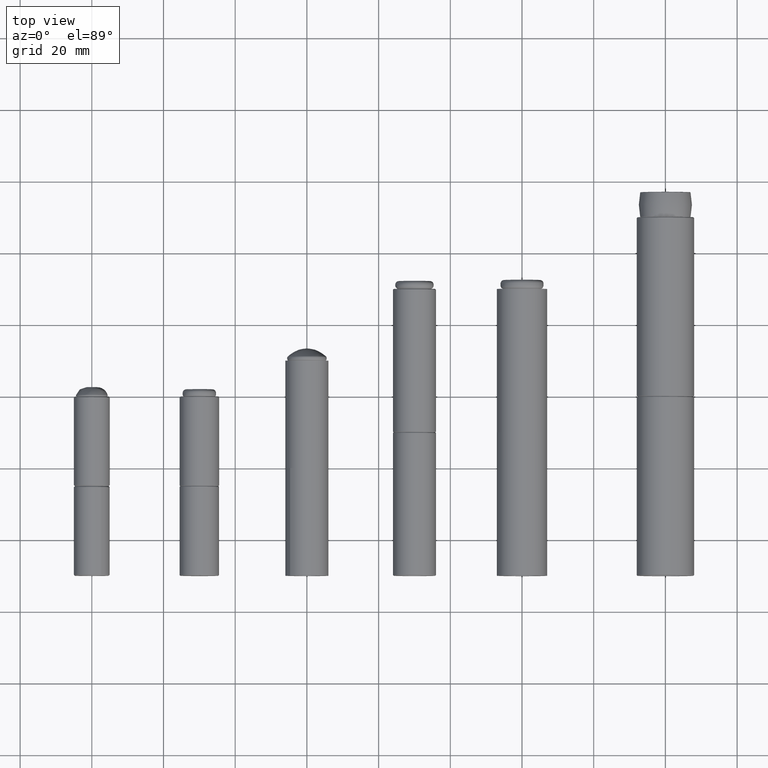
[diagram: clean part render]
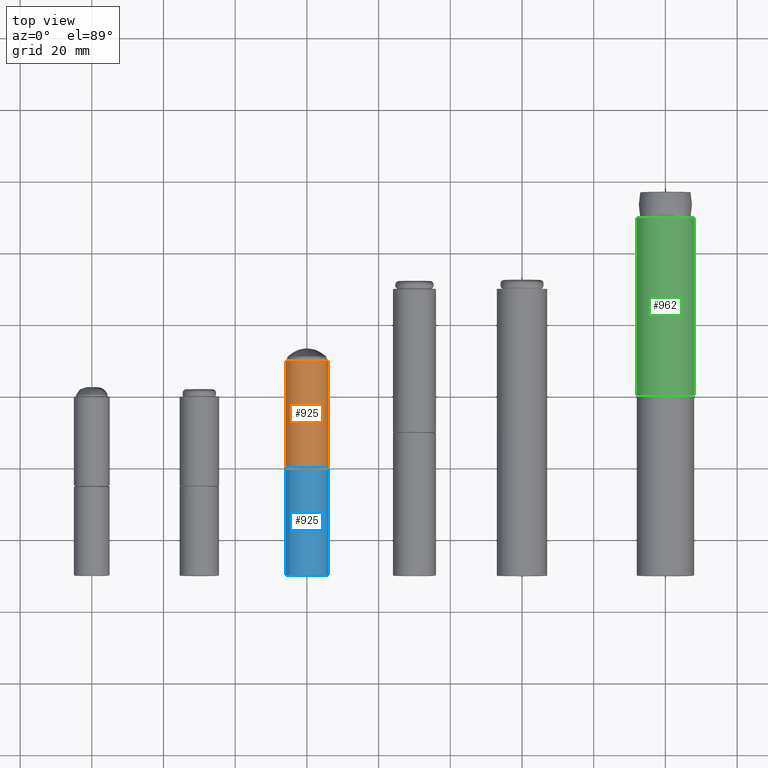
[diagram: same view with three faces highlighted in distinct colors, each labeled with its STEP entity id]
A machine part, top view with three faces highlighted in distinct colors.
Their STEP definitions:

[orange] entity #925 — the highlighted cylindrical surface (bore or boss wall) has radius 6 mm, axis along (-0, 1, -0).
#240=FACE_BOUND('',#416,.T.);
#310=FACE_OUTER_BOUND('',#415,.T.);
#415=EDGE_LOOP('',(#784));
#416=EDGE_LOOP('',(#785));
#526=CIRCLE('',#1062,6.);
#527=CIRCLE('',#1063,6.);
#600=VERTEX_POINT('',#1702);
#601=VERTEX_POINT('',#1704);
#675=EDGE_CURVE('',#600,#600,#526,.T.);
#676=EDGE_CURVE('',#601,#601,#527,.T.);
#784=ORIENTED_EDGE('',*,*,#675,.T.);
#785=ORIENTED_EDGE('',*,*,#676,.F.);
#878=CYLINDRICAL_SURFACE('',#1061,6.);
#925=ADVANCED_FACE('',(#310,#240),#878,.T.);
#1061=AXIS2_PLACEMENT_3D('',#1701,#1335,#1336);
#1062=AXIS2_PLACEMENT_3D('',#1703,#1337,#1338);
#1063=AXIS2_PLACEMENT_3D('',#1705,#1339,#1340);
#1335=DIRECTION('center_axis',(0.,0.,1.));
#1336=DIRECTION('ref_axis',(-1.,0.,0.));
#1337=DIRECTION('center_axis',(0.,0.,-1.));
#1338=DIRECTION('ref_axis',(-1.,0.,0.));
#1339=DIRECTION('center_axis',(0.,0.,-1.));
#1340=DIRECTION('ref_axis',(-1.,0.,0.));
#1701=CARTESIAN_POINT('Origin',(0.,0.,0.));
#1702=CARTESIAN_POINT('',(6.,7.34788079488412E-16,30.));
#1703=CARTESIAN_POINT('Origin',(0.,0.,30.));
#1704=CARTESIAN_POINT('',(6.,7.34788079488412E-16,0.));
#1705=CARTESIAN_POINT('Origin',(0.,0.,0.));

[blue] entity #925 — the highlighted cylindrical surface (bore or boss wall) has radius 6 mm, axis along (-0, 1, -0).
#240=FACE_BOUND('',#416,.T.);
#310=FACE_OUTER_BOUND('',#415,.T.);
#415=EDGE_LOOP('',(#784));
#416=EDGE_LOOP('',(#785));
#526=CIRCLE('',#1062,6.);
#527=CIRCLE('',#1063,6.);
#600=VERTEX_POINT('',#1702);
#601=VERTEX_POINT('',#1704);
#675=EDGE_CURVE('',#600,#600,#526,.T.);
#676=EDGE_CURVE('',#601,#601,#527,.T.);
#784=ORIENTED_EDGE('',*,*,#675,.T.);
#785=ORIENTED_EDGE('',*,*,#676,.F.);
#878=CYLINDRICAL_SURFACE('',#1061,6.);
#925=ADVANCED_FACE('',(#310,#240),#878,.T.);
#1061=AXIS2_PLACEMENT_3D('',#1701,#1335,#1336);
#1062=AXIS2_PLACEMENT_3D('',#1703,#1337,#1338);
#1063=AXIS2_PLACEMENT_3D('',#1705,#1339,#1340);
#1335=DIRECTION('center_axis',(0.,0.,1.));
#1336=DIRECTION('ref_axis',(-1.,0.,0.));
#1337=DIRECTION('center_axis',(0.,0.,-1.));
#1338=DIRECTION('ref_axis',(-1.,0.,0.));
#1339=DIRECTION('center_axis',(0.,0.,-1.));
#1340=DIRECTION('ref_axis',(-1.,0.,0.));
#1701=CARTESIAN_POINT('Origin',(0.,0.,0.));
#1702=CARTESIAN_POINT('',(6.,7.34788079488412E-16,30.));
#1703=CARTESIAN_POINT('Origin',(0.,0.,30.));
#1704=CARTESIAN_POINT('',(6.,7.34788079488412E-16,0.));
#1705=CARTESIAN_POINT('Origin',(0.,0.,0.));

[green] entity #962 — the highlighted cylindrical surface (bore or boss wall) has radius 8 mm, axis along (-0, 1, -0).
#270=FACE_BOUND('',#483,.T.);
#347=FACE_OUTER_BOUND('',#482,.T.);
#482=EDGE_LOOP('',(#858));
#483=EDGE_LOOP('',(#859));
#560=CIRCLE('',#1149,8.);
#562=CIRCLE('',#1152,8.);
#634=VERTEX_POINT('',#1853);
#636=VERTEX_POINT('',#1858);
#710=EDGE_CURVE('',#634,#634,#560,.T.);
#712=EDGE_CURVE('',#636,#636,#562,.T.);
#858=ORIENTED_EDGE('',*,*,#712,.F.);
#859=ORIENTED_EDGE('',*,*,#710,.F.);
#888=CYLINDRICAL_SURFACE('',#1151,8.);
#962=ADVANCED_FACE('',(#347,#270),#888,.T.);
#1149=AXIS2_PLACEMENT_3D('',#1854,#1511,#1512);
#1151=AXIS2_PLACEMENT_3D('',#1857,#1515,#1516);
#1152=AXIS2_PLACEMENT_3D('',#1859,#1517,#1518);
#1511=DIRECTION('center_axis',(0.,0.,-1.));
#1512=DIRECTION('ref_axis',(-1.,0.,0.));
#1515=DIRECTION('center_axis',(0.,0.,1.));
#1516=DIRECTION('ref_axis',(-1.,0.,0.));
#1517=DIRECTION('center_axis',(0.,0.,1.));
#1518=DIRECTION('ref_axis',(-1.,0.,0.));
#1853=CARTESIAN_POINT('',(8.,-9.79717439317883E-16,0.2));
#1854=CARTESIAN_POINT('Origin',(0.,0.,0.2));
#1857=CARTESIAN_POINT('Origin',(0.,0.,0.));
#1858=CARTESIAN_POINT('',(8.,9.79717439317883E-16,49.8));
#1859=CARTESIAN_POINT('Origin',(0.,0.,49.8));